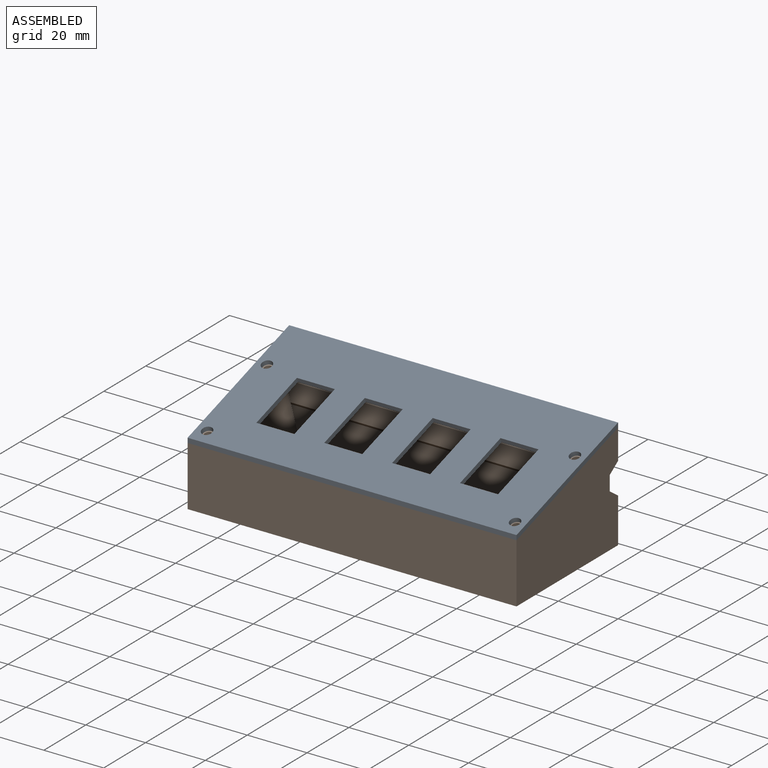
[diagram: assembled view]
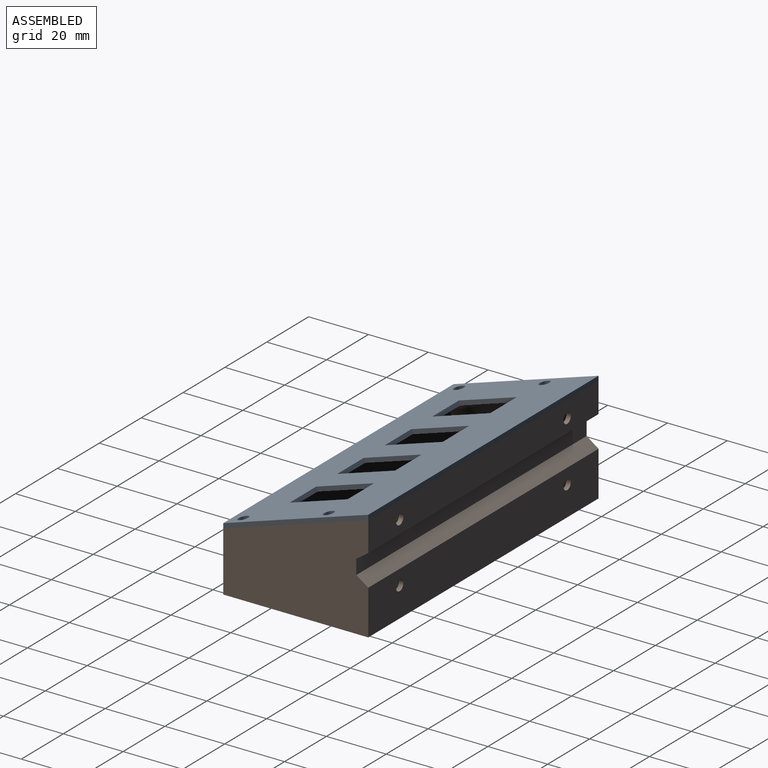
[diagram: assembled view, second angle]
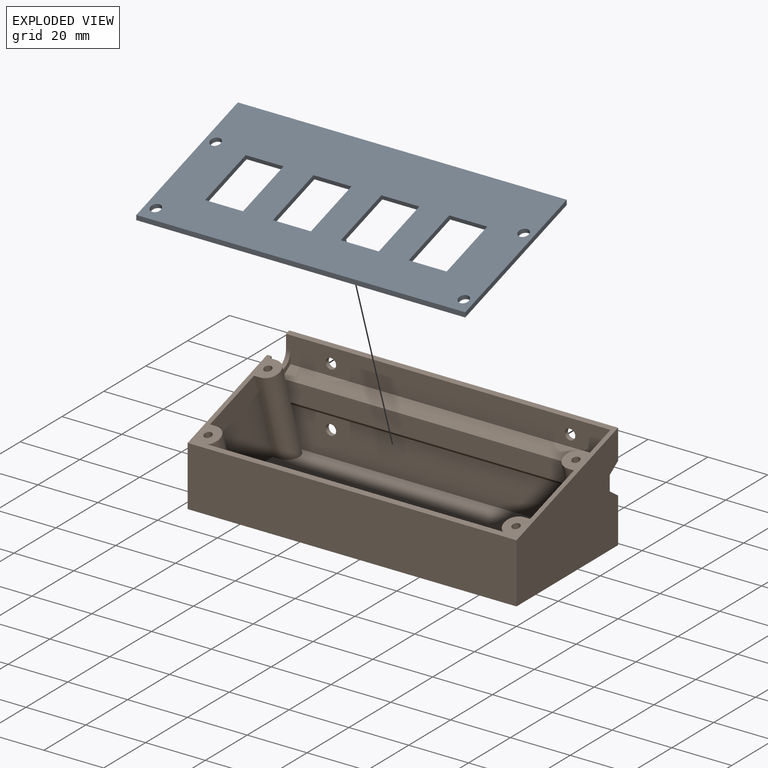
[diagram: exploded view]
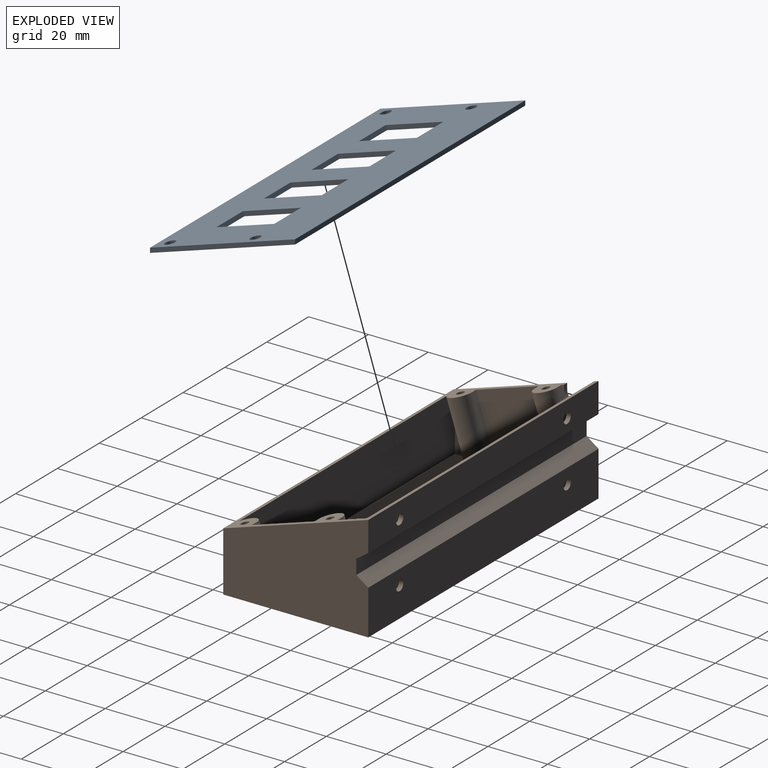
[diagram: exploded view, second angle]
ASSEMBLY  parts=2 mates=3
PART A: 26 faces, bbox 110x48.5x17.1 mm
  f0: plane 110x48.5mm, normal (0,-0.3,0.95), area 4530.1mm2, adj f2,f3,f4,f5,f6,f7,f8,f9
  f1: plane 110x48.5mm, normal (0,0.3,-0.95), area 4530.1mm2, adj f2,f3,f4,f5,f6,f7,f8,f9
  f2: plane 110x1.57mm, normal (0,-1,0), area 173.2mm2, adj f0,f1,f4,f5
  f3: plane 110x1.57mm, normal (0,1,0), area 173.2mm2, adj f0,f1,f4,f5
  f4: plane 48.5x17.07mm, normal (1,0,0), area 76.4mm2, adj f0,f1,f2,f3
  f5: plane 48.5x17.07mm, normal (-1,0,0), area 76.4mm2, adj f0,f1,f2,f3
  f6: plane 19.81x7.61mm, normal (1,0,0), area 30.5mm2, adj f0,f1,f7,f8
  f7: plane 12.7x1.43mm, normal (0,-0.95,-0.3), area 19mm2, adj f0,f1,f6,f9
  f8: plane 12.7x1.43mm, normal (0,0.95,0.3), area 19mm2, adj f0,f1,f6,f9
  f9: plane 19.81x7.61mm, normal (-1,0,0), area 30.5mm2, adj f0,f1,f7,f8
  f10: plane 19.81x7.61mm, normal (1,0,0), area 30.5mm2, adj f0,f1,f11,f12
  f11: plane 12.7x1.43mm, normal (0,-0.95,-0.3), area 19mm2, adj f0,f1,f10,f13
  f12: plane 12.7x1.43mm, normal (0,0.95,0.3), area 19mm2, adj f0,f1,f10,f13
  f13: plane 19.81x7.61mm, normal (-1,0,0), area 30.5mm2, adj f0,f1,f11,f12
  f14: plane 19.81x7.61mm, normal (1,0,0), area 30.5mm2, adj f0,f1,f15,f16
  f15: plane 12.7x1.43mm, normal (0,-0.95,-0.3), area 19mm2, adj f0,f1,f14,f17
  f16: plane 12.7x1.43mm, normal (0,0.95,0.3), area 19mm2, adj f0,f1,f14,f17
  f17: plane 19.81x7.61mm, normal (-1,0,0), area 30.5mm2, adj f0,f1,f15,f16
  f18: plane 19.81x7.61mm, normal (1,0,0), area 30.5mm2, adj f0,f1,f19,f20
  f19: plane 12.7x1.43mm, normal (0,-0.95,-0.3), area 19mm2, adj f0,f1,f18,f21
  f20: plane 12.7x1.43mm, normal (0,0.95,0.3), area 19mm2, adj f0,f1,f18,f21
  f21: plane 19.81x7.61mm, normal (-1,0,0), area 30.5mm2, adj f0,f1,f19,f20
  f22: cylinder r=1.75mm len=3.79mm, axis (0,-0.3,0.95), area 16.5mm2, adj f0,f1
  f23: cylinder r=1.75mm len=3.79mm, axis (0,-0.3,0.95), area 16.5mm2, adj f0,f1
  f24: cylinder r=1.75mm len=3.79mm, axis (0,-0.3,0.95), area 16.5mm2, adj f0,f1
  f25: cylinder r=1.75mm len=3.79mm, axis (0,-0.3,0.95), area 16.5mm2, adj f0,f1
PART B: 49 faces, bbox 110x48.5x36.4 mm
  f0: plane 17.09x5.46mm, normal (-1,0,0), area 46.7mm2, adj f1,f2,f34
  f1: plane 107x45.5mm, normal (0,0,1), area 4695.8mm2, adj f0,f2,f3,f4,f5,f16,f21,f22
  f2: plane 107x18.98mm, normal (0,1,0), area 2018mm2, adj f0,f1,f4,f6,f26,f27,f33,f34
  f3: plane 29.88x27.94mm, normal (-1,0,0), area 567.9mm2, adj f1,f6,f31,f32
  f4: plane 17.09x5.46mm, normal (1,0,0), area 46.7mm2, adj f1,f2,f26
  f5: plane 29.88x27.94mm, normal (1,0,0), area 567.9mm2, adj f1,f6,f24,f28
  f6: plane 110x48.5mm, normal (0,-0.3,0.95), area 615mm2, adj f2,f3,f5,f12,f13,f14,f15,f20
  f7: plane 110x48.5mm, normal (0,0,-1), area 5335mm2, adj f8,f13,f14,f15
  f8: plane 110x15mm, normal (0,1,0), area 1630.8mm2, adj f7,f9,f14,f15,f47,f48
  f9: plane 110x4mm, normal (0,0.57,0.82), area 537.1mm2, adj f8,f10,f14,f15
  f10: plane 110x4.9mm, normal (0,1,0), area 538.8mm2, adj f9,f11,f14,f15
  f11: plane 110x4mm, normal (0,0.57,-0.82), area 537.1mm2, adj f10,f12,f14,f15
  f12: plane 110x10mm, normal (0,1,0), area 1080.8mm2, adj f6,f11,f14,f15,f45,f46
  f13: plane 110x20mm, normal (0,-1,0), area 2200mm2, adj f6,f7,f14,f15
  f14: plane 48.5x35.5mm, normal (-1,0,0), area 1254.9mm2, adj f6,f7,f8,f9,f10,f11,f12,f13
  f15: plane 48.5x35.5mm, normal (1,0,0), area 1315.1mm2, adj f6,f7,f8,f9,f10,f11,f12,f13
  f16: plane 107x12.72mm, normal (0,-1,0), area 1341.7mm2, adj f1,f17,f21,f22,f47,f48
  f17: plane 107x4mm, normal (0,-0.57,-0.82), area 522.5mm2, adj f16,f18,f21,f22
  f18: plane 107x6.46mm, normal (0,-1,0), area 691.2mm2, adj f17,f19,f21,f22
  f19: plane 107x4mm, normal (0,-0.57,0.82), area 522.5mm2, adj f18,f20,f21,f22
  f20: plane 108.5x8.74mm, normal (0,-1,0), area 922.8mm2, adj f6,f14,f19,f21,f22,f44,f45,f46
  f21: plane 30.64x9.85mm, normal (1,0,0), area 70.1mm2, adj f1,f6,f16,f17,f18,f19,f20,f23
  f22: plane 33.52x9.85mm, normal (-1,0,0), area 130.3mm2, adj f1,f6,f16,f17,f18,f19,f20,f29
  f23: plane 30.37x9.71mm, normal (0,0.95,0.3), area 63.8mm2, adj f1,f6,f21,f25
  f24: plane 27.94x8.93mm, normal (0,-0.95,-0.3), area 58.7mm2, adj f1,f5,f6,f25
  f25: cylinder r=4mm len=32.81mm, axis (0,-0.3,0.95), area 384.6mm2, adj f1,f6,f23,f24
  f26: plane 17.09x5.46mm, normal (0,-0.95,-0.3), area 35.9mm2, adj f1,f2,f4,f27
  f27: cylinder r=4mm len=23.68mm, axis (0,-0.3,0.95), area 261.6mm2, adj f1,f2,f6,f26,f28
  f28: plane 21.24x6.79mm, normal (0,0.95,0.3), area 44.6mm2, adj f1,f5,f6,f27
  f29: plane 30.37x9.71mm, normal (0,0.95,0.3), area 63.8mm2, adj f1,f6,f22,f30
  f30: cylinder r=4mm len=32.81mm, axis (0,-0.3,0.95), area 384.6mm2, adj f1,f6,f29,f31
  f31: plane 27.94x8.93mm, normal (0,-0.95,-0.3), area 58.7mm2, adj f1,f3,f6,f30
  f32: plane 21.24x6.79mm, normal (0,0.95,0.3), area 44.6mm2, adj f1,f3,f6,f33
  f33: cylinder r=4mm len=23.68mm, axis (0,-0.3,0.95), area 261.6mm2, adj f1,f2,f6,f32,f34
  f34: plane 17.09x5.46mm, normal (0,-0.95,-0.3), area 35.9mm2, adj f0,f1,f2,f33
  f35: cylinder r=1.3mm len=15.08mm, axis (0,-0.3,0.95), area 122.5mm2, adj f6,f36
  f36: plane 2.6x2.48mm, normal (0,-0.3,0.95), area 5.3mm2, adj f35
  f37: cylinder r=1.3mm len=15.08mm, axis (0,-0.3,0.95), area 122.5mm2, adj f6,f38
  f38: plane 2.6x2.48mm, normal (0,-0.3,0.95), area 5.3mm2, adj f37
  f39: cylinder r=1.3mm len=15.08mm, axis (0,-0.3,0.95), area 122.5mm2, adj f6,f40
  f40: plane 2.6x2.48mm, normal (0,-0.3,0.95), area 5.3mm2, adj f39
  f41: cylinder r=1.3mm len=15.08mm, axis (0,-0.3,0.95), area 122.5mm2, adj f6,f42
  f42: plane 2.6x2.48mm, normal (0,-0.3,0.95), area 5.3mm2, adj f41
  f43: plane 1.71x1.5mm, normal (0,1,0), area 2.6mm2, adj f6,f14,f21,f44
  f44: cylinder r=4.5mm len=9mm, axis (-1,0,0), area 21.2mm2, adj f14,f20,f21,f43
  f45: cylinder r=1.75mm len=3.5mm, axis (0,1,0), area 16.5mm2, adj f12,f20
  f46: cylinder r=1.75mm len=3.5mm, axis (0,1,0), area 16.5mm2, adj f12,f20
  f47: cylinder r=1.75mm len=3.5mm, axis (0,1,0), area 16.5mm2, adj f8,f16
  f48: cylinder r=1.75mm len=3.5mm, axis (0,1,0), area 16.5mm2, adj f8,f16
PLACE A t=(-110,0,0)mm
PLACE B at identity fixed
MATE planar A.f1 <-> B.f6  axis (0,0.3,-0.95) through (-55,-23.72,27.92)mm
MATE planar B.f15 <-> A.f4  axis (1,0,0) through (0,0,7.5)mm
MATE planar A.f2 <-> B.f13  axis (0,-1,0) through (-55,-48.5,20.79)mm
